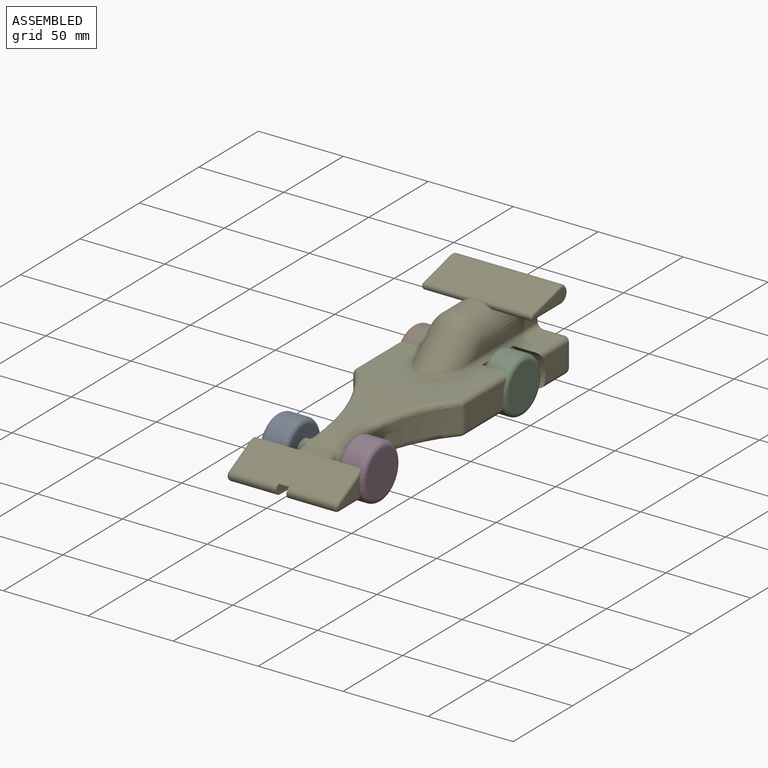
[diagram: assembled view]
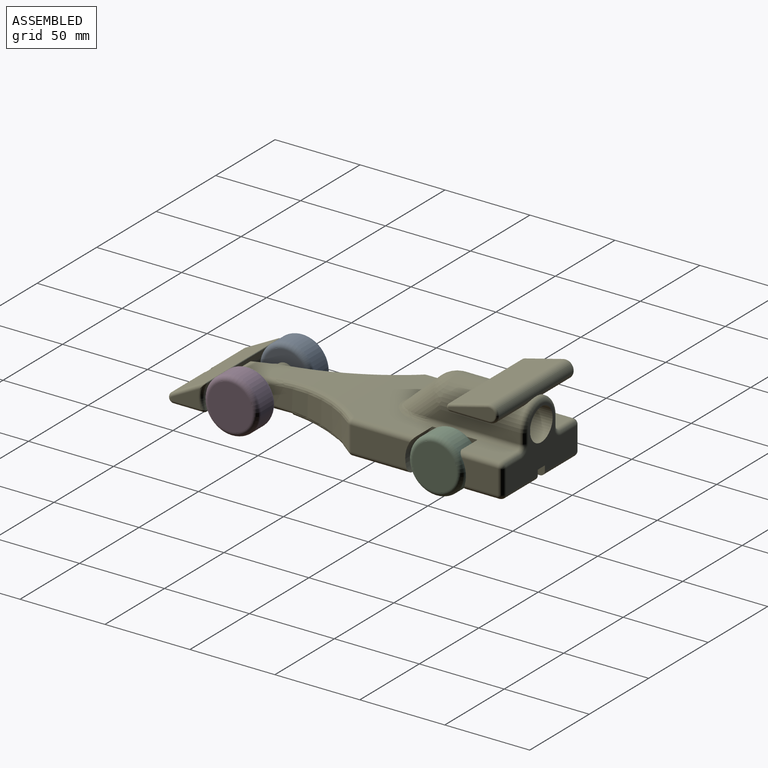
[diagram: assembled view, second angle]
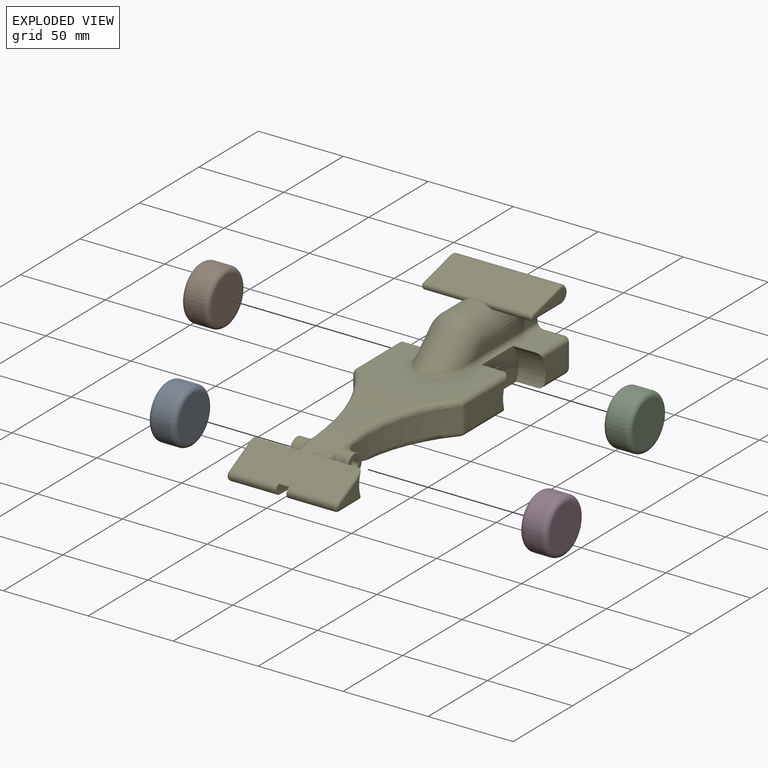
[diagram: exploded view]
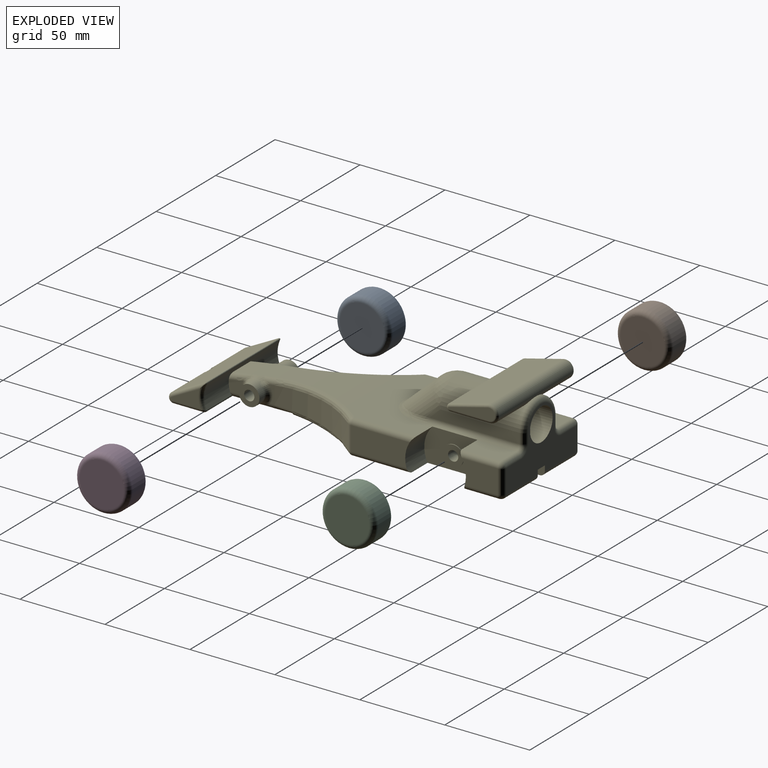
[diagram: exploded view, second angle]
ASSEMBLY  parts=5 mates=3
PART A: 5 faces, bbox 16x34.6x34.6 mm
  f0: cylinder r=16mm len=32mm, axis (-1,0,0), area 1005.3mm2, adj f3,f4
  f1: plane 26x26mm, normal (1,0,0), area 530.9mm2, adj f4
  f2: plane 26x26mm, normal (-1,0,0), area 530.9mm2, adj f3
  f3: torus R=13mm, axis (1,0,0), area 441.5mm2, adj f0,f2
  f4: torus R=13mm, axis (1,0,0), area 441.5mm2, adj f0,f1
PART B: same geometry as A
PART C: same geometry as A
PART D: same geometry as A
PART E: 148 faces, bbox 86.9x217.3x70.5 mm
  f0: plane 10.37x2.55mm, normal (1,0,0), area 15.4mm2, adj f1,f145,f146,f147
  f1: cylinder r=90mm len=58.7mm, axis (0,0,-1), area 823.3mm2, adj f0,f2,f142,f143,f144
  f2: torus R=93mm, axis (0,0,-1), area 4mm2, adj f1,f3,f141,f142
  f3: plane 59x37.45mm, normal (0,0,1), area 1419.4mm2, adj f2,f4,f133,f134,f135,f136,f137,f138
  f4: torus R=93mm, axis (0,0,-1), area 4mm2, adj f3,f5,f131,f132
  f5: bspline ~73.65x26.45mm, area 300.3mm2, adj f4,f6,f131,f140
  f6: torus R=497mm, axis (1,0,0), area 25.5mm2, adj f5,f7,f129,f130,f140
  f7: bspline ~5.89x3.81mm, area 13.9mm2, adj f6,f8,f127,f128
  f8: torus R=9mm, axis (1,0,0), area 39.6mm2, adj f7,f9,f127,f129
  f9: bspline ~7.17x4.33mm, area 14.7mm2, adj f8,f10,f126,f127
  f10: bspline ~7.01x2.59mm, area 14.8mm2, adj f9,f11,f125,f127
  f11: bspline ~7.17x4.33mm, area 14.7mm2, adj f10,f12,f124,f127
  f12: torus R=9mm, axis (1,0,0), area 30.1mm2, adj f11,f13,f123,f127
  f13: plane 9.52x7.75mm, normal (-1,0,0), area 57.7mm2, adj f12,f14,f15,f124
  f14: torus R=497mm, axis (1,0,0), area 51mm2, adj f13,f15,f123,f130,f140
  f15: cylinder r=17mm len=61mm, axis (-1,0,0), area 657.1mm2, adj f13,f14,f16,f116,f117,f118,f119,f120
  f16: cylinder r=1mm len=23.5mm, axis (1,0,0), area 43.8mm2, adj f15,f17,f110,f124
  f17: bspline ~2.96x2.29mm, area 3.2mm2, adj f16,f18,f116
  f18: cylinder r=2mm len=17.74mm, axis (0,1,0), area 53.5mm2, adj f17,f19,f109,f110
  f19: torus R=1mm, axis (1,0,0), area 19mm2, adj f18,f20,f107,f109
  f20: cylinder r=3mm len=27.5mm, axis (1,0,0), area 219.2mm2, adj f19,f21,f106,f110
  f21: plane 197.32x6mm, normal (1,0,0), area 1172mm2, adj f20,f22,f97,f98,f100,f101,f102,f103
  f22: cylinder r=3mm len=26.5mm, axis (-1,0,0), area 124.9mm2, adj f21,f23,f103,f110
  f23: sphere r=3mm, area 14.1mm2, adj f22,f24,f96
  f24: cylinder r=3mm len=14mm, axis (0,0,-1), area 66mm2, adj f23,f25,f95,f103
  f25: sphere r=3mm, area 14.1mm2, adj f24,f26,f32
  f26: cylinder r=3mm len=23.1mm, axis (0,1,0), area 103.9mm2, adj f25,f27,f28,f95
  f27: plane 23.1x12.5mm, normal (0,0,1), area 288.8mm2, adj f26,f28,f32,f135
  f28: cylinder r=18.33mm len=20.04mm, axis (1,0,0), area 337.1mm2, adj f26,f27,f29,f95,f96,f110,f135
  f29: plane 35.71x20.04mm, normal (-1,0,0), area 557.4mm2, adj f28,f30,f110,f134,f135
  f30: cylinder r=6mm len=12mm, axis (1,0,0), area 18.8mm2, adj f29,f31
  f31: plane 12x12mm, normal (-1,0,0), area 84.8mm2, adj f30,f101
  f32: cylinder r=3mm len=12.5mm, axis (-1,0,0), area 58.9mm2, adj f25,f27,f33,f103
  f33: torus R=6mm, axis (0,1,0), area 30.3mm2, adj f32,f34,f103,f135
  f34: cylinder r=3mm len=6mm, axis (0,0,-1), area 28.3mm2, adj f33,f35,f94,f103
  f35: torus R=11mm, axis (0,1,0), area 191.1mm2, adj f34,f36,f77,f103
  f36: cylinder r=3mm len=6mm, axis (0,0,-1), area 28.3mm2, adj f35,f37,f40,f103
  f37: plane 53.06x6mm, normal (1,0,0), area 298.8mm2, adj f36,f38,f77,f137
  f38: cylinder r=14mm len=29.65mm, axis (0,-0.74,-0.68), area 907.2mm2, adj f37,f39,f94,f136
  f39: sphere r=14mm, area 67.8mm2, adj f38,f77
  f40: torus R=6mm, axis (0,1,0), area 30.3mm2, adj f36,f41,f103,f137
  f41: cylinder r=3mm len=12.5mm, axis (1,0,0), area 58.9mm2, adj f40,f42,f76,f103
  f42: plane 23.1x12.5mm, normal (0,0,1), area 288.8mm2, adj f41,f43,f75,f137
  f43: cylinder r=3mm len=23.1mm, axis (0,1,0), area 103.9mm2, adj f42,f44,f75,f76
  f44: plane 21x14mm, normal (1,0,0), area 269.1mm2, adj f43,f45,f74,f75
  f45: cylinder r=3mm len=14mm, axis (0,0,-1), area 66mm2, adj f44,f46,f76,f103
  f46: sphere r=3mm, area 9mm2, adj f45,f47,f74
  f47: cylinder r=3mm len=26.5mm, axis (1,0,0), area 124.9mm2, adj f46,f48,f73,f103
  f48: plane 191.32x27.5mm, normal (0,0,-1), area 3141.1mm2, adj f47,f49,f60,f63,f66,f71,f73,f74
  f49: bspline ~7.96x3.57mm, area 16.6mm2, adj f48,f50,f120,f145
  f50: bspline ~7.22x2.63mm, area 14.8mm2, adj f49,f51,f57,f58
  f51: bspline ~7.17x4.33mm, area 14.7mm2, adj f50,f52,f58,f120
  f52: torus R=9mm, axis (-1,0,0), area 30.1mm2, adj f51,f53,f58,f121
  f53: bspline ~5.74x4.46mm, area 13.9mm2, adj f52,f54,f58,f122
  f54: bspline ~9.1x2.35mm, area 16mm2, adj f53,f55,f56,f58
  f55: bspline ~5.89x3.81mm, area 13.9mm2, adj f54,f58,f146,f147
  f56: bspline ~10.5x4.79mm, area 17.2mm2, adj f54,f122,f140,f147
  f57: bspline ~7.17x4.33mm, area 14.7mm2, adj f50,f58,f145,f146
  f58: cylinder r=6mm len=12mm, axis (-1,0,0), area 172.6mm2, adj f50,f51,f52,f53,f54,f55,f57,f59
  f59: plane 12x12mm, normal (1,0,0), area 84.8mm2, adj f58,f98
  f60: cylinder r=3mm len=33.94mm, axis (0,-1,0), area 157.1mm2, adj f48,f61,f62,f138
  f61: plane 34.5x14mm, normal (1,0,0), area 456.3mm2, adj f60,f138,f139,f144
  f62: sphere r=3mm, area 6.4mm2, adj f60,f143,f144
  f63: plane 35.71x20.04mm, normal (1,0,0), area 557.4mm2, adj f48,f64,f75,f137,f138
  f64: cylinder r=6mm len=12mm, axis (-1,0,0), area 18.8mm2, adj f63,f65
  f65: plane 12x12mm, normal (1,0,0), area 84.8mm2, adj f64,f101
  f66: cylinder r=3mm len=27.5mm, axis (-1,0,0), area 219.2mm2, adj f48,f67,f73,f106
  f67: torus R=1mm, axis (-1,0,0), area 19mm2, adj f66,f68,f69,f71
  f68: plane 17.3x10.47mm, normal (1,0,0), area 98.6mm2, adj f67,f69,f71,f118
  f69: cylinder r=2mm len=20.64mm, axis (0,-0.89,-0.47), area 63.9mm2, adj f67,f68,f70,f106
  f70: bspline ~4.26x3.8mm, area 2.5mm2, adj f69,f117,f118
  f71: cylinder r=2mm len=17.74mm, axis (0,1,0), area 53.5mm2, adj f48,f67,f68,f72
  f72: bspline ~2.96x2.29mm, area 3.2mm2, adj f71,f118,f119
  f73: plane 197.32x6mm, normal (-1,0,0), area 1172mm2, adj f47,f48,f66,f97,f98,f100,f101,f102
  f74: cylinder r=3mm len=20.5mm, axis (0,1,0), area 93.9mm2, adj f44,f46,f48,f75
  f75: cylinder r=18.33mm len=20.04mm, axis (-1,0,0), area 337.1mm2, adj f42,f43,f44,f48,f63,f74,f137
  f76: sphere r=3mm, area 9mm2, adj f41,f43,f45
  f77: cylinder r=14mm len=46.54mm, axis (0,1,0), area 1572.7mm2, adj f35,f37,f39,f78,f90,f91,f92,f93
  f78: cylinder r=2.07mm len=62mm, axis (-1,0,0), area 501.2mm2, adj f77,f79,f84,f89,f90,f93
  f79: torus R=0.57mm, axis (1,0,0), area 10.4mm2, adj f78,f80,f82,f83
  f80: plane 27.5x7mm, normal (-1,0,0), area 116.5mm2, adj f79,f81,f82,f83
  f81: torus R=3.5mm, axis (1,0,0), area 35.6mm2, adj f80,f82,f83,f91
  f82: cylinder r=1.5mm len=23.08mm, axis (0,-0.97,-0.25), area 55.2mm2, adj f79,f80,f81,f84
  f83: cylinder r=1.5mm len=23.44mm, axis (0,1,0), area 55.2mm2, adj f79,f80,f81,f93
  f84: plane 82x42.71mm, normal (0,-0.25,0.97), area 1453mm2, adj f78,f82,f85,f91,f92
  f85: cylinder r=1.5mm len=23.08mm, axis (0,-0.97,-0.25), area 55.2mm2, adj f84,f86,f88,f89
  f86: plane 27.5x7mm, normal (1,0,0), area 116.5mm2, adj f85,f87,f88,f89
  f87: cylinder r=1.5mm len=23.44mm, axis (0,1,0), area 55.2mm2, adj f86,f88,f89,f90
  f88: torus R=3.5mm, axis (-1,0,0), area 35.6mm2, adj f85,f86,f87,f92
  f89: torus R=0.57mm, axis (-1,0,0), area 10.4mm2, adj f78,f85,f86,f87
  f90: plane 31.7x30mm, normal (0,0,-1), area 509.5mm2, adj f77,f78,f87,f92
  f91: cylinder r=5mm len=30.27mm, axis (-1,0,0), area 138.4mm2, adj f77,f81,f84,f93
  f92: cylinder r=5mm len=31.73mm, axis (-1,0,0), area 453.3mm2, adj f77,f84,f88,f90
  f93: plane 23.44x21.74mm, normal (0,0,-1), area 509.5mm2, adj f77,f78,f83,f91
  f94: plane 53.06x6mm, normal (-1,0,0), area 298.8mm2, adj f34,f38,f77,f135
  f95: plane 21x14mm, normal (-1,0,0), area 269.1mm2, adj f24,f26,f28,f96
  f96: cylinder r=3mm len=20.5mm, axis (0,1,0), area 93.9mm2, adj f23,f28,f95,f110
  f97: plane 32.83x6mm, normal (0,0,-1), area 197mm2, adj f21,f73,f98,f106
  f98: cylinder r=3mm len=34mm, axis (1,0,0), area 610.6mm2, adj f21,f59,f73,f97,f99,f100
  f99: plane 12x12mm, normal (-1,0,0), area 84.8mm2, adj f98,f127
  f100: plane 115.53x6mm, normal (0,0,-1), area 693.2mm2, adj f21,f73,f98,f101
  f101: cylinder r=3mm len=34mm, axis (1,0,0), area 610.6mm2, adj f21,f31,f65,f73,f100,f102
  f102: plane 37.76x6mm, normal (0,0,-1), area 226.6mm2, adj f21,f73,f101,f103
  f103: plane 59x37mm, normal (0,1,0), area 994mm2, adj f21,f22,f24,f32,f33,f34,f35,f36
  f104: cylinder r=9.5mm len=50mm, axis (0,1,0), area 2984.5mm2, adj f103,f105
  f105: plane 19x19mm, normal (0,1,0), area 283.5mm2, adj f104
  f106: plane 61x19.71mm, normal (0,-0.47,0.89), area 1354mm2, adj f20,f21,f66,f69,f73,f97,f107,f117
  f107: cylinder r=2mm len=20.64mm, axis (0,-0.89,-0.47), area 63.9mm2, adj f19,f106,f108,f109
  f108: bspline ~4.26x3.8mm, area 2.5mm2, adj f107,f116,f117
  f109: plane 17.3x10.47mm, normal (-1,0,0), area 98.6mm2, adj f18,f19,f107,f116
  f110: plane 191.32x27.5mm, normal (0,0,-1), area 3141.1mm2, adj f16,f18,f20,f21,f22,f28,f29,f96
  f111: cylinder r=3mm len=33.94mm, axis (0,-1,0), area 157.1mm2, adj f110,f112,f114,f134
  f112: plane 34.5x14mm, normal (-1,0,0), area 456.3mm2, adj f111,f113,f133,f134
  f113: cylinder r=3mm len=14mm, axis (0,0,-1), area 29.8mm2, adj f112,f114,f131,f132
  f114: sphere r=3mm, area 6.4mm2, adj f111,f113,f115
  f115: torus R=93mm, axis (0,0,1), area 305mm2, adj f110,f114,f126,f131
  f116: torus R=19mm, axis (1,0,0), area 39mm2, adj f15,f17,f108,f109
  f117: cylinder r=0.5mm len=61mm, axis (-1,0,0), area 76.3mm2, adj f15,f70,f106,f108
  f118: torus R=19mm, axis (-1,0,0), area 39mm2, adj f15,f68,f70,f72
  f119: cylinder r=1mm len=23.5mm, axis (-1,0,0), area 43.8mm2, adj f15,f48,f72,f120
  f120: cylinder r=3mm len=13.27mm, axis (0,1,0), area 56.3mm2, adj f15,f48,f49,f51,f119,f121
  f121: plane 9.52x7.75mm, normal (1,0,0), area 57.7mm2, adj f15,f52,f120,f122
  f122: torus R=497mm, axis (-1,0,0), area 51mm2, adj f15,f53,f56,f121,f140
  f123: bspline ~5.74x4.46mm, area 13.9mm2, adj f12,f14,f127,f128
  f124: cylinder r=3mm len=13.27mm, axis (0,1,0), area 56.3mm2, adj f11,f13,f15,f16,f110,f125
  f125: bspline ~7.96x3.57mm, area 16.6mm2, adj f10,f110,f124,f126
  f126: cylinder r=3mm len=6.68mm, axis (0,1,0), area 27.8mm2, adj f9,f110,f115,f125,f129
  f127: cylinder r=6mm len=12mm, axis (1,0,0), area 172.6mm2, adj f7,f8,f9,f10,f11,f12,f99,f123
  f128: bspline ~9.1x2.35mm, area 16mm2, adj f7,f123,f127,f130
  f129: plane 10.37x2.55mm, normal (-1,0,0), area 15.4mm2, adj f6,f8,f126,f131
  f130: bspline ~10.5x4.79mm, area 17.2mm2, adj f6,f14,f128,f140
  f131: cylinder r=90mm len=58.7mm, axis (0,0,-1), area 823.3mm2, adj f4,f5,f113,f115,f129
  f132: sphere r=3mm, area 6.4mm2, adj f4,f113,f133
  f133: cylinder r=3mm len=36.8mm, axis (0,1,0), area 168mm2, adj f3,f112,f132,f134
  f134: cylinder r=17.36mm len=20.04mm, axis (1,0,0), area 340.3mm2, adj f3,f29,f110,f111,f112,f133,f135
  f135: cylinder r=3mm len=53.06mm, axis (0,1,0), area 236.8mm2, adj f3,f27,f28,f29,f33,f94,f134,f136
  f136: bspline ~34x25.1mm, area 206.9mm2, adj f3,f38,f135,f137
  f137: cylinder r=3mm len=53.06mm, axis (0,1,0), area 236.8mm2, adj f3,f37,f40,f42,f63,f75,f136,f138
  f138: cylinder r=17.36mm len=20.04mm, axis (-1,0,0), area 340.3mm2, adj f3,f48,f60,f61,f63,f137,f139
  f139: cylinder r=3mm len=36.8mm, axis (0,1,0), area 168mm2, adj f3,f61,f138,f141
  f140: cylinder r=500mm len=86.4mm, axis (-1,0,0), area 2052.9mm2, adj f3,f5,f6,f14,f15,f56,f122,f130
  f141: sphere r=3mm, area 6.4mm2, adj f2,f139,f144
  f142: bspline ~73.65x26.45mm, area 300.3mm2, adj f1,f2,f140,f147
  f143: torus R=93mm, axis (0,0,1), area 305mm2, adj f1,f48,f62,f145
  f144: cylinder r=3mm len=14mm, axis (0,0,-1), area 29.8mm2, adj f1,f61,f62,f141
  f145: cylinder r=3mm len=6.68mm, axis (0,1,0), area 27.8mm2, adj f0,f48,f49,f57,f143
  f146: torus R=9mm, axis (-1,0,0), area 39.6mm2, adj f0,f55,f57,f58
  f147: torus R=497mm, axis (-1,0,0), area 25.5mm2, adj f0,f55,f56,f140,f142
PLACE A t=(-65.94,-69.05,3.68)mm
PLACE B t=(-69.94,50.95,3.68)mm
PLACE C t=(-20.44,50.95,3.68)mm
PLACE D t=(-19.94,-69.05,3.68)mm
PLACE E t=(-36.94,-9.05,5.68)mm
MATE parallel B.f0 <-> E.f30  axis (1,0,0) through (-53.94,50.95,3.68)mm
MATE parallel C.f0 <-> E.f30  axis (-1,0,0) through (-20.44,50.95,3.68)mm
MATE parallel D.f0 <-> E.f8  axis (-1,0,0) through (-19.94,-69.05,3.68)mm
